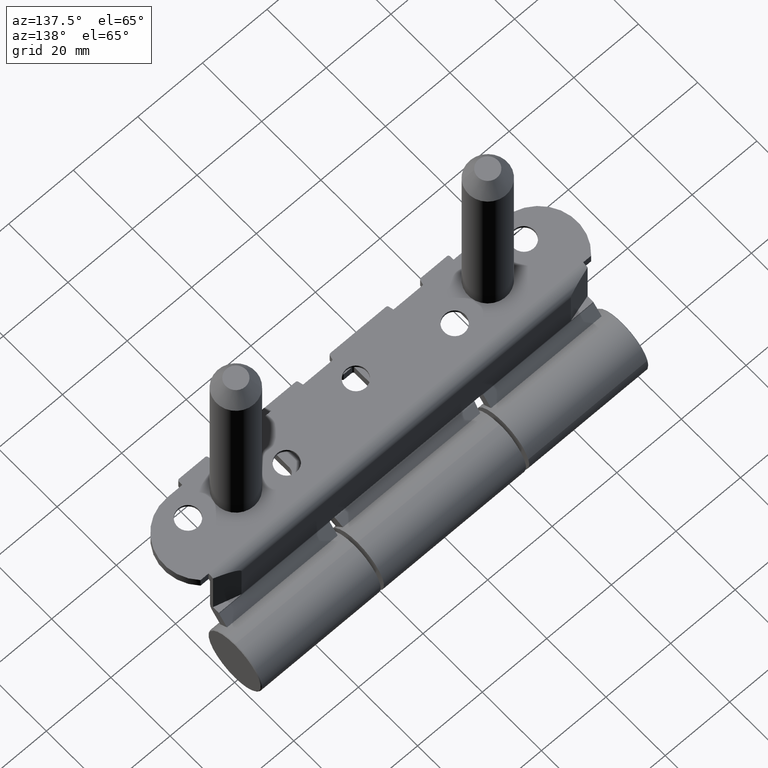
[diagram: clean part render]
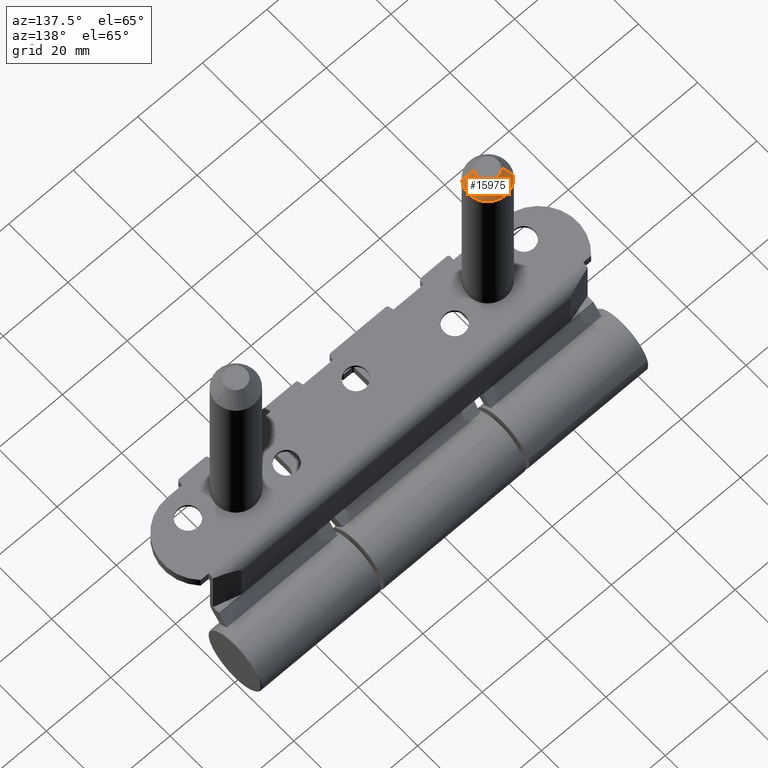
[diagram: same view with one face highlighted and labeled with its STEP entity id]
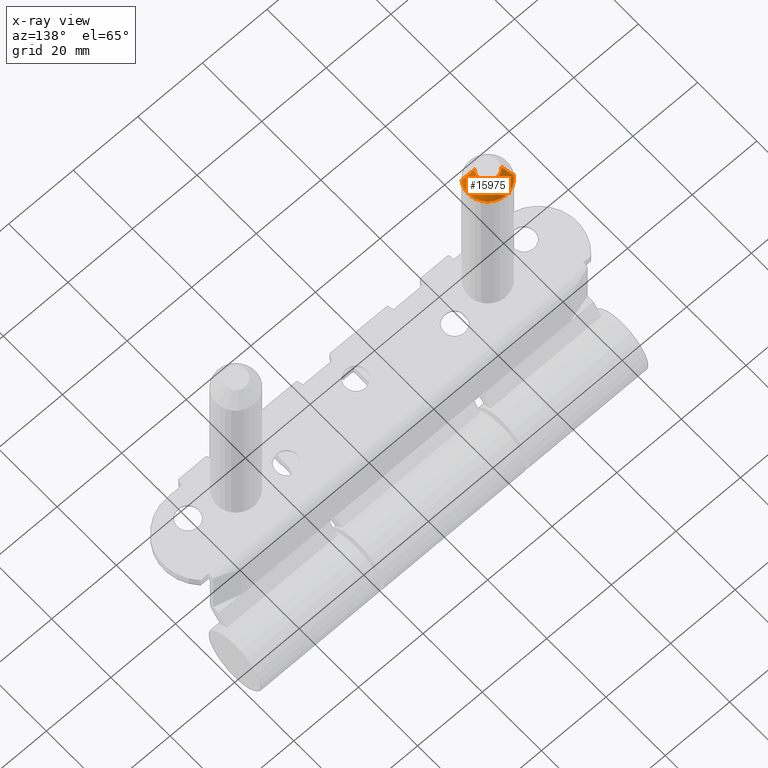
[diagram: x-ray of the same camera — body ghosted, the highlighted face saturated]
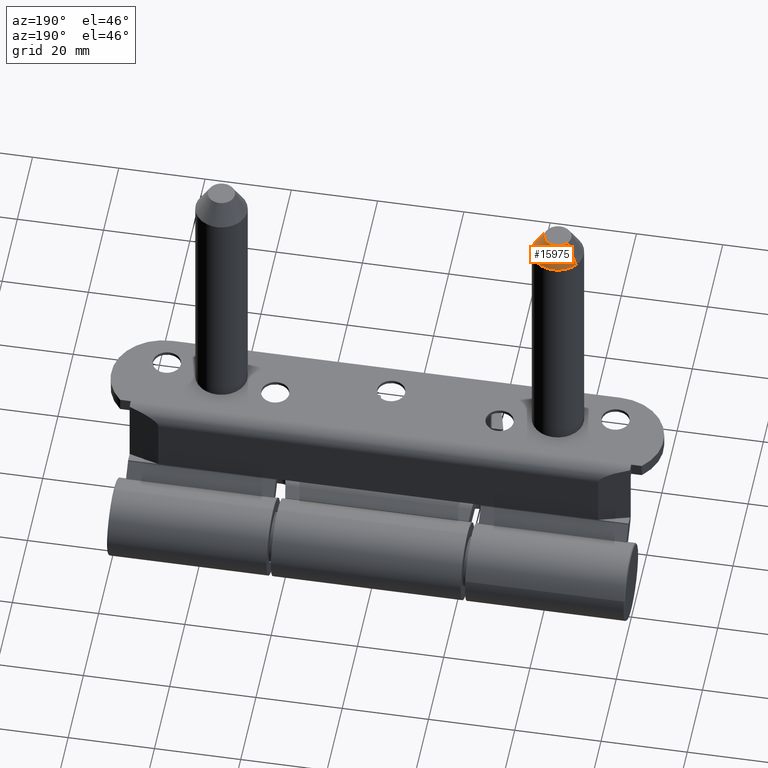
[diagram: same view with one face highlighted and labeled with its STEP entity id]
A machine part, auxiliary view. The second image highlights one B-rep face of the part: STEP entity #15975.
The next image is the same camera in x-ray: the body ghosted, the highlighted face saturated — about 0% of this face is hidden behind the body in this view.
A second angle (auxiliary view) of the same face is appended — the face is thin or edge-on in the first view.
In plain terms, the highlighted conical surface has half-angle 30 deg.
Its self-contained STEP definition (entity closure, byte-faithful):
#760 = AXIS2_PLACEMENT_3D ( 'NONE', #16850, #7097, #2914 ) ;
#2316 = VERTEX_POINT ( 'NONE', #14902 ) ;
#2685 = EDGE_CURVE ( 'NONE', #13216, #12545, #12591, .T. ) ;
#2914 = DIRECTION ( 'NONE',  ( 1.554312234475219551E-15, 6.648738173305834404E-16, 1.000000000000000000 ) ) ;
#3798 = ORIENTED_EDGE ( 'NONE', *, *, #15809, .T. ) ;
#4086 = FACE_OUTER_BOUND ( 'NONE', #15422, .T. ) ;
#4311 = ORIENTED_EDGE ( 'NONE', *, *, #9218, .F. ) ;
#4793 = CONICAL_SURFACE ( 'NONE', #760, 3.113248654051862907, 0.5235987755983001479 ) ;
#4835 = LINE ( 'NONE', #14401, #6533 ) ;
#5598 = AXIS2_PLACEMENT_3D ( 'NONE', #13351, #6239, #14623 ) ;
#5946 = CARTESIAN_POINT ( 'NONE',  ( 0.000000000000000000, 0.000000000000000000, 0.000000000000000000 ) ) ;
#5985 = DIRECTION ( 'NONE',  ( 7.991237642529404093E-16, 0.8660254037844381525, 0.5000000000000008882 ) ) ;
#6239 = DIRECTION ( 'NONE',  ( -2.536605383552710837E-17, -1.000000000000000000, -6.648738173305840321E-16 ) ) ;
#6533 = VECTOR ( 'NONE', #10428, 1000.000000000000114 ) ;
#7097 = DIRECTION ( 'NONE',  ( 2.536605383552710837E-17, 1.000000000000000000, 6.648738173305840321E-16 ) ) ;
#7406 = ORIENTED_EDGE ( 'NONE', *, *, #2685, .T. ) ;
#7407 = DIRECTION ( 'NONE',  ( -1.554312234475219551E-15, -6.648738173305834404E-16, -1.000000000000000000 ) ) ;
#8251 = CARTESIAN_POINT ( 'NONE',  ( -6.460976265114078165E-15, 2.069917516918775934E-15, -3.113248654051862907 ) ) ;
#8459 = CARTESIAN_POINT ( 'NONE',  ( 4.838960471956320573E-15, 2.069917516918762918E-15, 3.113248654051862907 ) ) ;
#9218 = EDGE_CURVE ( 'NONE', #9874, #2316, #9923, .T. ) ;
#9434 = CARTESIAN_POINT ( 'NONE',  ( 9.452703676028946066E-15, 5.000000000000001776, 5.999999999999998224 ) ) ;
#9874 = VERTEX_POINT ( 'NONE', #8251 ) ;
#9923 = CIRCLE ( 'NONE', #14273, 3.113248654051862907 ) ;
#10428 = DIRECTION ( 'NONE',  ( -6.939561302649130468E-16, 0.8660254037844383745, -0.5000000000000003331 ) ) ;
#11615 = DIRECTION ( 'NONE',  ( -2.536605383552710837E-17, -1.000000000000000000, -6.648738173305840321E-16 ) ) ;
#12545 = VERTEX_POINT ( 'NONE', #9434 ) ;
#12591 = CIRCLE ( 'NONE', #5598, 6.000000000000000000 ) ;
#13216 = VERTEX_POINT ( 'NONE', #14475 ) ;
#13228 = VECTOR ( 'NONE', #5985, 1000.000000000000000 ) ;
#13351 = CARTESIAN_POINT ( 'NONE',  ( -6.938893903907228378E-15, 5.000000000000004441, 1.647987302177966740E-14 ) ) ;
#14273 = AXIS2_PLACEMENT_3D ( 'NONE', #5946, #11615, #7407 ) ;
#14401 = CARTESIAN_POINT ( 'NONE',  ( -4.457697472042878672E-15, -2.069917516918762918E-15, -3.113248654051862907 ) ) ;
#14475 = CARTESIAN_POINT ( 'NONE',  ( -8.464255058185272925E-15, 5.000000000000008882, -6.000000000000000000 ) ) ;
#14623 = DIRECTION ( 'NONE',  ( -1.554312234475219354E-15, -7.228014483236696555E-16, -1.000000000000000000 ) ) ;
#14902 = CARTESIAN_POINT ( 'NONE',  ( 7.145832073992641997E-15, -2.069917516918770806E-15, 3.113248654051862907 ) ) ;
#15171 = EDGE_CURVE ( 'NONE', #2316, #12545, #15556, .T. ) ;
#15422 = EDGE_LOOP ( 'NONE', ( #4311, #3798, #7406, #17795 ) ) ;
#15556 = LINE ( 'NONE', #8459, #13228 ) ;
#15809 = EDGE_CURVE ( 'NONE', #9874, #13216, #4835, .T. ) ;
#15975 = ADVANCED_FACE ( 'NONE', ( #4086 ), #4793, .T. ) ;
#16850 = CARTESIAN_POINT ( 'NONE',  ( 0.000000000000000000, 0.000000000000000000, 0.000000000000000000 ) ) ;
#17795 = ORIENTED_EDGE ( 'NONE', *, *, #15171, .F. ) ;